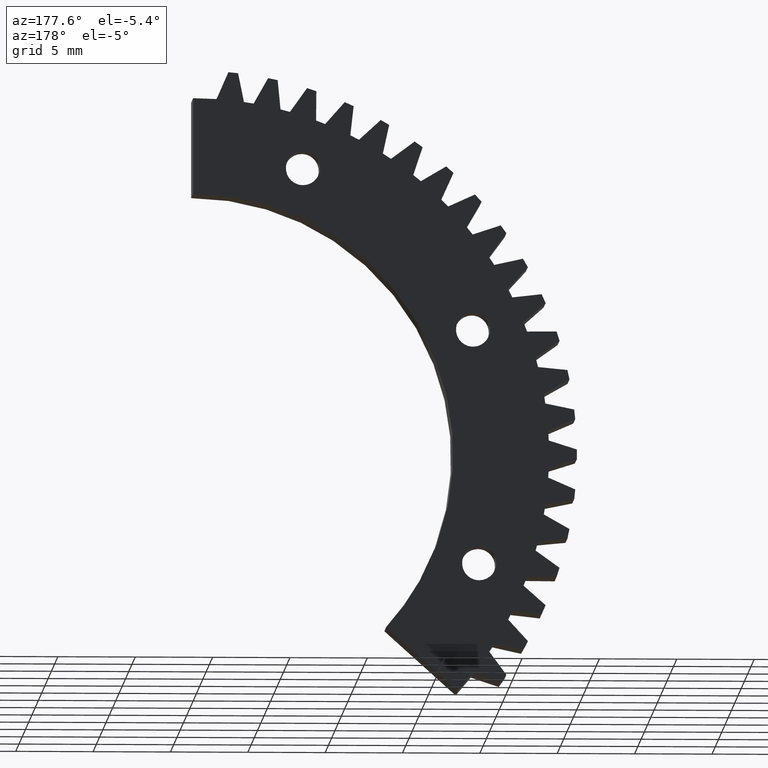
[diagram: clean part render]
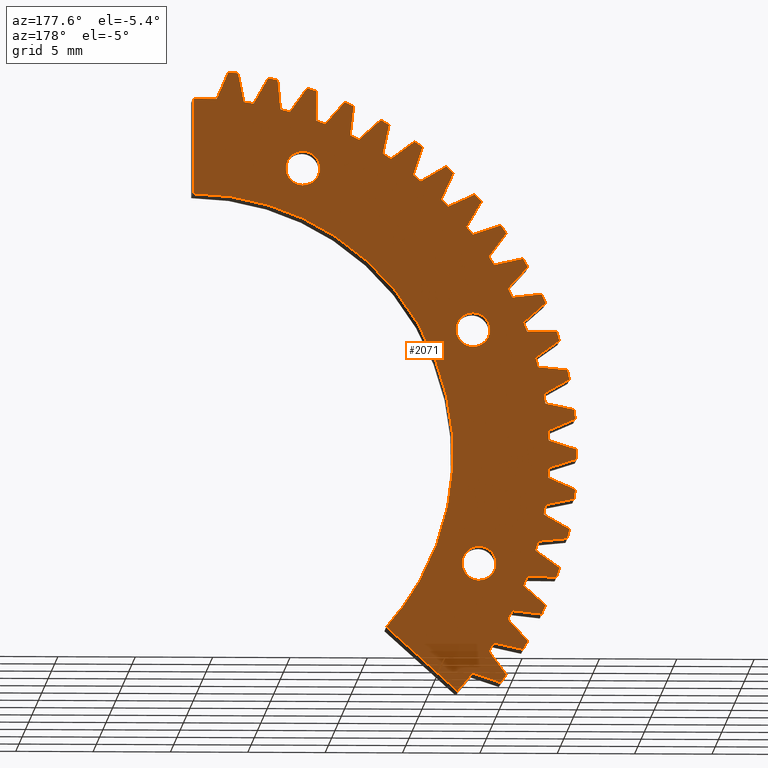
[diagram: same view with one face highlighted and labeled with its STEP entity id]
A machine part, auxiliary view. The second image highlights one B-rep face of the part: STEP entity #2071.
In plain terms, the highlighted face is a freeform B-spline surface patch.
Its self-contained STEP definition (entity closure, byte-faithful):
#283=CARTESIAN_POINT('',(-17.392505277051189,-2.839428E-017,-26.765910265743909));
#284=VERTEX_POINT('',#283);
#290=CARTESIAN_POINT('',(-18.484815756047350,0.0,-27.995747923898900));
#291=VERTEX_POINT('',#290);
#292=CARTESIAN_POINT('',(-17.392505277051189,-2.839428E-017,-26.765910265743909));
#293=CARTESIAN_POINT('',(-17.384815756047349,0.0,-26.830601392248894));
#294=CARTESIAN_POINT('',(-17.384815756047349,0.0,-26.895747923898899));
#295=CARTESIAN_POINT('',(-17.384815756047352,0.0,-27.995747923898911));
#296=CARTESIAN_POINT('',(-18.484815756047350,0.0,-27.995747923898900));
#304=(BOUNDED_CURVE()B_SPLINE_CURVE(2,(#292,#293,#294,#295,#296),.UNSPECIFIED.,.F.,.U.)B_SPLINE_CURVE_WITH_KNOTS((3,2,3),(0.229562473505570,0.250000000000000,0.500000000000000),.UNSPECIFIED.)CURVE()GEOMETRIC_REPRESENTATION_ITEM()RATIONAL_B_SPLINE_CURVE((0.956026754168140,0.976055948321845,1.0,0.707106781186548,1.0))REPRESENTATION_ITEM(''));
#305=EDGE_CURVE('',#284,#291,#304,.T.);
#307=CARTESIAN_POINT('',(-19.582764034302048,-2.775558E-017,-26.962901317540130));
#308=VERTEX_POINT('',#307);
#309=CARTESIAN_POINT('',(-18.484815756047350,0.0,-27.995747923898900));
#310=CARTESIAN_POINT('',(-19.519592429354898,0.0,-27.995747923898904));
#311=CARTESIAN_POINT('',(-19.582764034302055,-2.775558E-017,-26.962901317540126));
#319=(BOUNDED_CURVE()B_SPLINE_CURVE(2,(#309,#310,#311),.UNSPECIFIED.,.F.,.U.)B_SPLINE_CURVE_WITH_KNOTS((3,3),(0.500000000000000,0.739332962193914),.UNSPECIFIED.)CURVE()GEOMETRIC_REPRESENTATION_ITEM()RATIONAL_B_SPLINE_CURVE((1.0,0.719603993339464,0.976072041570213))REPRESENTATION_ITEM(''));
#320=EDGE_CURVE('',#291,#308,#319,.T.);
#354=CARTESIAN_POINT('',(-18.484815756047350,0.0,-25.795747923898901));
#355=VERTEX_POINT('',#354);
#356=CARTESIAN_POINT('',(-19.582764034302055,-2.775558E-017,-26.962901317540133));
#357=CARTESIAN_POINT('',(-19.584815756047355,0.0,-26.929355963680656));
#358=CARTESIAN_POINT('',(-19.584815756047352,0.0,-26.895747923898899));
#359=CARTESIAN_POINT('',(-19.584815756047348,0.0,-25.795747923898901));
#360=CARTESIAN_POINT('',(-18.484815756047350,0.0,-25.795747923898901));
#368=(BOUNDED_CURVE()B_SPLINE_CURVE(2,(#356,#357,#358,#359,#360),.UNSPECIFIED.,.F.,.U.)B_SPLINE_CURVE_WITH_KNOTS((3,2,3),(0.739332962193915,0.750000000000000,1.0),.UNSPECIFIED.)CURVE()GEOMETRIC_REPRESENTATION_ITEM()RATIONAL_B_SPLINE_CURVE((0.976072041570215,0.987502787847084,1.0,0.707106781186548,1.0))REPRESENTATION_ITEM(''));
#369=EDGE_CURVE('',#308,#355,#368,.T.);
#371=CARTESIAN_POINT('',(-18.484815756047350,0.0,-25.795747923898901));
#372=CARTESIAN_POINT('',(-17.507823777559501,0.0,-25.795747923898897));
#373=CARTESIAN_POINT('',(-17.392505277051189,-2.839428E-017,-26.765910265743909));
#381=(BOUNDED_CURVE()B_SPLINE_CURVE(2,(#371,#372,#373),.UNSPECIFIED.,.F.,.U.)B_SPLINE_CURVE_WITH_KNOTS((3,3),(0.0,0.229562473505570),.UNSPECIFIED.)CURVE()GEOMETRIC_REPRESENTATION_ITEM()RATIONAL_B_SPLINE_CURVE((1.0,0.731050832864703,0.956026754168140))REPRESENTATION_ITEM(''));
#382=EDGE_CURVE('',#355,#284,#381,.T.);
#627=CARTESIAN_POINT('',(-16.995861018606430,-2.839428E-017,-11.616828469771271));
#628=VERTEX_POINT('',#627);
#634=CARTESIAN_POINT('',(-18.088171497602598,0.0,-12.846666127926261));
#635=VERTEX_POINT('',#634);
#636=CARTESIAN_POINT('',(-16.995861018606433,-2.839428E-017,-11.616828469771269));
#637=CARTESIAN_POINT('',(-16.988171497602597,0.0,-11.681519596276262));
#638=CARTESIAN_POINT('',(-16.988171497602600,0.0,-11.746666127926259));
#639=CARTESIAN_POINT('',(-16.988171497602590,0.0,-12.846666127926261));
#640=CARTESIAN_POINT('',(-18.088171497602598,0.0,-12.846666127926261));
#648=(BOUNDED_CURVE()B_SPLINE_CURVE(2,(#636,#637,#638,#639,#640),.UNSPECIFIED.,.F.,.U.)B_SPLINE_CURVE_WITH_KNOTS((3,2,3),(0.229562473505569,0.250000000000000,0.500000000000000),.UNSPECIFIED.)CURVE()GEOMETRIC_REPRESENTATION_ITEM()RATIONAL_B_SPLINE_CURVE((0.956026754168138,0.976055948321844,1.0,0.707106781186548,1.0))REPRESENTATION_ITEM(''));
#649=EDGE_CURVE('',#628,#635,#648,.T.);
#651=CARTESIAN_POINT('',(-19.186119775857300,-2.775558E-017,-11.813819521567490));
#652=VERTEX_POINT('',#651);
#653=CARTESIAN_POINT('',(-18.088171497602598,0.0,-12.846666127926261));
#654=CARTESIAN_POINT('',(-19.122948170910139,0.0,-12.846666127926261));
#655=CARTESIAN_POINT('',(-19.186119775857296,-2.775558E-017,-11.813819521567492));
#663=(BOUNDED_CURVE()B_SPLINE_CURVE(2,(#653,#654,#655),.UNSPECIFIED.,.F.,.U.)B_SPLINE_CURVE_WITH_KNOTS((3,3),(0.500000000000000,0.739332962193914),.UNSPECIFIED.)CURVE()GEOMETRIC_REPRESENTATION_ITEM()RATIONAL_B_SPLINE_CURVE((1.0,0.719603993339464,0.976072041570213))REPRESENTATION_ITEM(''));
#664=EDGE_CURVE('',#635,#652,#663,.T.);
#698=CARTESIAN_POINT('',(-18.088171497602598,0.0,-10.646666127926260));
#699=VERTEX_POINT('',#698);
#700=CARTESIAN_POINT('',(-19.186119775857300,-2.775558E-017,-11.813819521567497));
#701=CARTESIAN_POINT('',(-19.188171497602600,0.0,-11.780274167708026));
#702=CARTESIAN_POINT('',(-19.188171497602600,0.0,-11.746666127926259));
#703=CARTESIAN_POINT('',(-19.188171497602600,0.0,-10.646666127926261));
#704=CARTESIAN_POINT('',(-18.088171497602598,0.0,-10.646666127926260));
#712=(BOUNDED_CURVE()B_SPLINE_CURVE(2,(#700,#701,#702,#703,#704),.UNSPECIFIED.,.F.,.U.)B_SPLINE_CURVE_WITH_KNOTS((3,2,3),(0.739332962193915,0.750000000000000,1.0),.UNSPECIFIED.)CURVE()GEOMETRIC_REPRESENTATION_ITEM()RATIONAL_B_SPLINE_CURVE((0.976072041570214,0.987502787847084,1.0,0.707106781186548,1.0))REPRESENTATION_ITEM(''));
#713=EDGE_CURVE('',#652,#699,#712,.T.);
#715=CARTESIAN_POINT('',(-18.088171497602598,0.0,-10.646666127926260));
#716=CARTESIAN_POINT('',(-17.111179519114749,0.0,-10.646666127926260));
#717=CARTESIAN_POINT('',(-16.995861018606437,-2.839428E-017,-11.616828469771264));
#725=(BOUNDED_CURVE()B_SPLINE_CURVE(2,(#715,#716,#717),.UNSPECIFIED.,.F.,.U.)B_SPLINE_CURVE_WITH_KNOTS((3,3),(0.0,0.229562473505569),.UNSPECIFIED.)CURVE()GEOMETRIC_REPRESENTATION_ITEM()RATIONAL_B_SPLINE_CURVE((1.0,0.731050832864704,0.956026754168138))REPRESENTATION_ITEM(''));
#726=EDGE_CURVE('',#699,#628,#725,.T.);
#971=CARTESIAN_POINT('',(-6.003372707059458,-2.839428E-017,-1.185279847954365));
#972=VERTEX_POINT('',#971);
#978=CARTESIAN_POINT('',(-7.095683186055621,0.0,-2.415117506109356));
#979=VERTEX_POINT('',#978);
#980=CARTESIAN_POINT('',(-6.003372707059458,-2.839428E-017,-1.185279847954365));
#981=CARTESIAN_POINT('',(-5.995683186055620,0.0,-1.249970974459353));
#982=CARTESIAN_POINT('',(-5.995683186055620,0.0,-1.315117506109356));
#983=CARTESIAN_POINT('',(-5.995683186055621,0.0,-2.415117506109356));
#984=CARTESIAN_POINT('',(-7.095683186055621,0.0,-2.415117506109356));
#992=(BOUNDED_CURVE()B_SPLINE_CURVE(2,(#980,#981,#982,#983,#984),.UNSPECIFIED.,.F.,.U.)B_SPLINE_CURVE_WITH_KNOTS((3,2,3),(0.229562473505570,0.250000000000000,0.500000000000000),.UNSPECIFIED.)CURVE()GEOMETRIC_REPRESENTATION_ITEM()RATIONAL_B_SPLINE_CURVE((0.956026754168139,0.976055948321844,1.0,0.707106781186548,1.0))REPRESENTATION_ITEM(''));
#993=EDGE_CURVE('',#972,#979,#992,.T.);
#995=CARTESIAN_POINT('',(-8.193631464310325,-2.775558E-017,-1.382270899750586));
#996=VERTEX_POINT('',#995);
#997=CARTESIAN_POINT('',(-7.095683186055621,0.0,-2.415117506109356));
#998=CARTESIAN_POINT('',(-8.130459859363166,0.0,-2.415117506109356));
#999=CARTESIAN_POINT('',(-8.193631464310325,-2.775558E-017,-1.382270899750586));
#1007=(BOUNDED_CURVE()B_SPLINE_CURVE(2,(#997,#998,#999),.UNSPECIFIED.,.F.,.U.)B_SPLINE_CURVE_WITH_KNOTS((3,3),(0.500000000000000,0.739332962193914),.UNSPECIFIED.)CURVE()GEOMETRIC_REPRESENTATION_ITEM()RATIONAL_B_SPLINE_CURVE((1.0,0.719603993339464,0.976072041570213))REPRESENTATION_ITEM(''));
#1008=EDGE_CURVE('',#979,#996,#1007,.T.);
#1042=CARTESIAN_POINT('',(-7.095683186055621,0.0,-0.215117506109356));
#1043=VERTEX_POINT('',#1042);
#1044=CARTESIAN_POINT('',(-8.193631464310325,-2.775558E-017,-1.382270899750586));
#1045=CARTESIAN_POINT('',(-8.195683186055621,0.0,-1.348725545891119));
#1046=CARTESIAN_POINT('',(-8.195683186055621,0.0,-1.315117506109356));
#1047=CARTESIAN_POINT('',(-8.195683186055621,0.0,-0.215117506109356));
#1048=CARTESIAN_POINT('',(-7.095683186055621,0.0,-0.215117506109356));
#1056=(BOUNDED_CURVE()B_SPLINE_CURVE(2,(#1044,#1045,#1046,#1047,#1048),.UNSPECIFIED.,.F.,.U.)B_SPLINE_CURVE_WITH_KNOTS((3,2,3),(0.739332962193915,0.750000000000000,1.0),.UNSPECIFIED.)CURVE()GEOMETRIC_REPRESENTATION_ITEM()RATIONAL_B_SPLINE_CURVE((0.976072041570214,0.987502787847084,1.0,0.707106781186548,1.0))REPRESENTATION_ITEM(''));
#1057=EDGE_CURVE('',#996,#1043,#1056,.T.);
#1059=CARTESIAN_POINT('',(-7.095683186055621,0.0,-0.215117506109356));
#1060=CARTESIAN_POINT('',(-6.118691207567768,0.0,-0.215117506109356));
#1061=CARTESIAN_POINT('',(-6.003372707059458,-2.839428E-017,-1.185279847954365));
#1069=(BOUNDED_CURVE()B_SPLINE_CURVE(2,(#1059,#1060,#1061),.UNSPECIFIED.,.F.,.U.)B_SPLINE_CURVE_WITH_KNOTS((3,3),(0.0,0.229562473505570),.UNSPECIFIED.)CURVE()GEOMETRIC_REPRESENTATION_ITEM()RATIONAL_B_SPLINE_CURVE((1.0,0.731050832864703,0.956026754168139))REPRESENTATION_ITEM(''));
#1070=EDGE_CURVE('',#1043,#972,#1069,.T.);
#1076=CARTESIAN_POINT('',(-26.038757181996029,0.0,6.897333916763474));
#1077=CARTESIAN_POINT('',(1.238760485344445,0.0,6.897333916763474));
#1078=CARTESIAN_POINT('',(-26.038757181996029,0.0,-37.192251966026468));
#1079=CARTESIAN_POINT('',(1.238760485344445,0.0,-37.192251966026468));
#1080=B_SPLINE_SURFACE_WITH_KNOTS('',1,1,((#1076,#1078),(#1077,#1079)),.UNSPECIFIED.,.F.,.F.,.U.,(2,2),(2,2),(0.0,27.277517667340469),(0.0,44.089585882789940),.UNSPECIFIED.);
#1081=CARTESIAN_POINT('',(-17.092330180161351,0.0,-35.190003841206057));
#1082=VERTEX_POINT('',#1081);
#1083=CARTESIAN_POINT('',(-12.484832521074720,0.0,-31.041392299796801));
#1084=VERTEX_POINT('',#1083);
#1085=CARTESIAN_POINT('',(-17.092330180161351,0.0,-35.190003841206057));
#1086=CARTESIAN_POINT('',(-12.484832521074720,0.0,-31.041392299796801));
#1087=QUASI_UNIFORM_CURVE('',1,(#1085,#1086),.UNSPECIFIED.,.F.,.U.);
#1088=EDGE_CURVE('',#1082,#1084,#1087,.T.);
#1089=ORIENTED_EDGE('',*,*,#1088,.F.);
#1090=CARTESIAN_POINT('',(-18.070914999999850,0.0,-34.028202000000000));
#1091=VERTEX_POINT('',#1090);
#1092=CARTESIAN_POINT('',(-18.070914999999850,0.0,-34.028202000000000));
#1093=CARTESIAN_POINT('',(-17.600815569607764,0.0,-34.625269279792668));
#1094=CARTESIAN_POINT('',(-17.092330180161351,0.0,-35.190003841206057));
#1102=(BOUNDED_CURVE()B_SPLINE_CURVE(2,(#1092,#1093,#1094),.UNSPECIFIED.,.F.,.U.)CURVE()GEOMETRIC_REPRESENTATION_ITEM()QUASI_UNIFORM_CURVE()RATIONAL_B_SPLINE_CURVE((1.0,0.999454621518006,1.0))REPRESENTATION_ITEM(''));
#1103=EDGE_CURVE('',#1091,#1082,#1102,.T.);
#1104=ORIENTED_EDGE('',*,*,#1103,.F.);
#1105=CARTESIAN_POINT('',(-19.876850414031551,0.0,-34.630736271565937));
#1106=VERTEX_POINT('',#1105);
#1107=CARTESIAN_POINT('',(-19.876850414031551,0.0,-34.630736271565937));
#1108=CARTESIAN_POINT('',(-18.070914999999850,0.0,-34.028202000000000));
#1109=QUASI_UNIFORM_CURVE('',1,(#1107,#1108),.UNSPECIFIED.,.F.,.U.);
#1110=EDGE_CURVE('',#1106,#1091,#1109,.T.);
#1111=ORIENTED_EDGE('',*,*,#1110,.F.);
#1112=CARTESIAN_POINT('',(-20.247151931836051,0.0,-34.121060030843651));
#1113=VERTEX_POINT('',#1112);
#1114=CARTESIAN_POINT('',(-20.247151931836051,0.0,-34.121060030843637));
#1115=CARTESIAN_POINT('',(-20.065238261149879,0.0,-34.378250033800015));
#1116=CARTESIAN_POINT('',(-19.876850414031551,0.0,-34.630736271565929));
#1124=(BOUNDED_CURVE()B_SPLINE_CURVE(2,(#1114,#1115,#1116),.UNSPECIFIED.,.F.,.U.)CURVE()GEOMETRIC_REPRESENTATION_ITEM()QUASI_UNIFORM_CURVE()RATIONAL_B_SPLINE_CURVE((1.0,0.999919332660222,1.0))REPRESENTATION_ITEM(''));
#1125=EDGE_CURVE('',#1113,#1106,#1124,.T.);
#1126=ORIENTED_EDGE('',*,*,#1125,.F.);
#1127=CARTESIAN_POINT('',(-19.116051409487099,0.0,-32.589704958693801));
#1128=VERTEX_POINT('',#1127);
#1129=CARTESIAN_POINT('',(-19.116051409487099,0.0,-32.589704958693801));
#1130=CARTESIAN_POINT('',(-20.247151931836051,0.0,-34.121060030843651));
#1131=QUASI_UNIFORM_CURVE('',1,(#1129,#1130),.UNSPECIFIED.,.F.,.U.);
#1132=EDGE_CURVE('',#1128,#1113,#1131,.T.);
#1133=ORIENTED_EDGE('',*,*,#1132,.F.);
#1134=CARTESIAN_POINT('',(-19.459166999999901,0.0,-32.061337000000051));
#1135=VERTEX_POINT('',#1134);
#1136=CARTESIAN_POINT('',(-19.459166999999901,0.0,-32.061337000000051));
#1137=CARTESIAN_POINT('',(-19.291227688761953,0.0,-32.327870850725972));
#1138=CARTESIAN_POINT('',(-19.116051409487099,0.0,-32.589704958693801));
#1146=(BOUNDED_CURVE()B_SPLINE_CURVE(2,(#1136,#1137,#1138),.UNSPECIFIED.,.F.,.U.)CURVE()GEOMETRIC_REPRESENTATION_ITEM()QUASI_UNIFORM_CURVE()RATIONAL_B_SPLINE_CURVE((1.0,0.999906209882898,1.0))REPRESENTATION_ITEM(''));
#1147=EDGE_CURVE('',#1135,#1128,#1146,.T.);
#1148=ORIENTED_EDGE('',*,*,#1147,.F.);
#1149=CARTESIAN_POINT('',(-21.318195575685252,0.0,-32.471797917155953));
#1150=VERTEX_POINT('',#1149);
#1151=CARTESIAN_POINT('',(-21.318195575685252,0.0,-32.471797917155953));
#1152=CARTESIAN_POINT('',(-19.459166999999901,0.0,-32.061337000000051));
#1153=QUASI_UNIFORM_CURVE('',1,(#1151,#1152),.UNSPECIFIED.,.F.,.U.);
#1154=EDGE_CURVE('',#1150,#1135,#1153,.T.);
#1155=ORIENTED_EDGE('',*,*,#1154,.F.);
#1156=CARTESIAN_POINT('',(-21.633200999999900,0.0,-31.926196999999998));
#1157=VERTEX_POINT('',#1156);
#1158=CARTESIAN_POINT('',(-21.633200999999900,0.0,-31.926196999999998));
#1159=CARTESIAN_POINT('',(-21.479163618592178,0.0,-32.200998167942807));
#1160=CARTESIAN_POINT('',(-21.318195575685252,0.0,-32.471797917155953));
#1168=(BOUNDED_CURVE()B_SPLINE_CURVE(2,(#1158,#1159,#1160),.UNSPECIFIED.,.F.,.U.)CURVE()GEOMETRIC_REPRESENTATION_ITEM()QUASI_UNIFORM_CURVE()RATIONAL_B_SPLINE_CURVE((1.0,0.999919329477810,1.0))REPRESENTATION_ITEM(''));
#1169=EDGE_CURVE('',#1157,#1150,#1168,.T.);
#1170=ORIENTED_EDGE('',*,*,#1169,.F.);
#1171=CARTESIAN_POINT('',(-20.348221299102551,0.0,-30.521467647659701));
#1172=VERTEX_POINT('',#1171);
#1173=CARTESIAN_POINT('',(-20.348221299102551,0.0,-30.521467647659701));
#1174=CARTESIAN_POINT('',(-21.633200999999900,0.0,-31.926196999999998));
#1175=QUASI_UNIFORM_CURVE('',1,(#1173,#1174),.UNSPECIFIED.,.F.,.U.);
#1176=EDGE_CURVE('',#1172,#1157,#1175,.T.);
#1177=ORIENTED_EDGE('',*,*,#1176,.F.);
#1178=CARTESIAN_POINT('',(-20.634230999999900,0.0,-29.960132999999999));
#1179=VERTEX_POINT('',#1178);
#1180=CARTESIAN_POINT('',(-20.634230999999900,0.0,-29.960132999999999));
#1181=CARTESIAN_POINT('',(-20.495070411087564,0.0,-30.242759072931797));
#1182=CARTESIAN_POINT('',(-20.348221299102551,0.0,-30.521467647659701));
#1190=(BOUNDED_CURVE()B_SPLINE_CURVE(2,(#1180,#1181,#1182),.UNSPECIFIED.,.F.,.U.)CURVE()GEOMETRIC_REPRESENTATION_ITEM()QUASI_UNIFORM_CURVE()RATIONAL_B_SPLINE_CURVE((1.0,0.999906210581396,1.0))REPRESENTATION_ITEM(''));
#1191=EDGE_CURVE('',#1179,#1172,#1190,.T.);
#1192=ORIENTED_EDGE('',*,*,#1191,.F.);
#1193=CARTESIAN_POINT('',(-22.525977204834948,0.0,-30.174019501582698));
#1194=VERTEX_POINT('',#1193);
#1195=CARTESIAN_POINT('',(-22.525977204834948,0.0,-30.174019501582698));
#1196=CARTESIAN_POINT('',(-20.634230999999900,0.0,-29.960132999999999));
#1197=QUASI_UNIFORM_CURVE('',1,(#1195,#1196),.UNSPECIFIED.,.F.,.U.);
#1198=EDGE_CURVE('',#1194,#1179,#1197,.T.);
#1199=ORIENTED_EDGE('',*,*,#1198,.F.);
#1200=CARTESIAN_POINT('',(-22.782218999999898,0.0,-29.598483999999999));
#1201=VERTEX_POINT('',#1200);
#1202=CARTESIAN_POINT('',(-22.782218999999898,0.0,-29.598483999999999));
#1203=CARTESIAN_POINT('',(-22.657753509639182,0.0,-29.887879242687351));
#1204=CARTESIAN_POINT('',(-22.525977204834948,0.0,-30.174019501582698));
#1212=(BOUNDED_CURVE()B_SPLINE_CURVE(2,(#1202,#1203,#1204),.UNSPECIFIED.,.F.,.U.)CURVE()GEOMETRIC_REPRESENTATION_ITEM()QUASI_UNIFORM_CURVE()RATIONAL_B_SPLINE_CURVE((1.0,0.999919331048054,1.0))REPRESENTATION_ITEM(''));
#1213=EDGE_CURVE('',#1201,#1194,#1212,.T.);
#1214=ORIENTED_EDGE('',*,*,#1213,.F.);
#1215=CARTESIAN_POINT('',(-21.357449212627898,0.0,-28.335768627281450));
#1216=VERTEX_POINT('',#1215);
#1217=CARTESIAN_POINT('',(-21.357449212627898,0.0,-28.335768627281450));
#1218=CARTESIAN_POINT('',(-22.782218999999898,0.0,-29.598483999999999));
#1219=QUASI_UNIFORM_CURVE('',1,(#1217,#1218),.UNSPECIFIED.,.F.,.U.);
#1220=EDGE_CURVE('',#1216,#1201,#1219,.T.);
#1221=ORIENTED_EDGE('',*,*,#1220,.F.);
#1222=CARTESIAN_POINT('',(-21.583221726717451,0.0,-27.747611213448302));
#1223=VERTEX_POINT('',#1222);
#1224=CARTESIAN_POINT('',(-21.583221726717429,0.0,-27.747611213448302));
#1225=CARTESIAN_POINT('',(-21.474363459173961,0.0,-28.043236120914390));
#1226=CARTESIAN_POINT('',(-21.357449212627891,0.0,-28.335768627281439));
#1234=(BOUNDED_CURVE()B_SPLINE_CURVE(2,(#1224,#1225,#1226),.UNSPECIFIED.,.F.,.U.)CURVE()GEOMETRIC_REPRESENTATION_ITEM()QUASI_UNIFORM_CURVE()RATIONAL_B_SPLINE_CURVE((1.0,0.999906209597057,1.0))REPRESENTATION_ITEM(''));
#1235=EDGE_CURVE('',#1223,#1216,#1234,.T.);
#1236=ORIENTED_EDGE('',*,*,#1235,.F.);
#1237=CARTESIAN_POINT('',(-23.486960256427949,0.0,-27.762576994153349));
#1238=VERTEX_POINT('',#1237);
#1239=CARTESIAN_POINT('',(-23.486960256427949,0.0,-27.762576994153349));
#1240=CARTESIAN_POINT('',(-21.583221726717451,0.0,-27.747611213448302));
#1241=QUASI_UNIFORM_CURVE('',1,(#1239,#1240),.UNSPECIFIED.,.F.,.U.);
#1242=EDGE_CURVE('',#1238,#1223,#1241,.T.);
#1243=ORIENTED_EDGE('',*,*,#1242,.F.);
#1244=CARTESIAN_POINT('',(-23.681632999999898,0.0,-27.163418000000000));
#1245=VERTEX_POINT('',#1244);
#1246=CARTESIAN_POINT('',(-23.681632999999898,0.0,-27.163418000000000));
#1247=CARTESIAN_POINT('',(-23.588102015474011,0.0,-27.464233941698055));
#1248=CARTESIAN_POINT('',(-23.486960256427949,0.0,-27.762576994153349));
#1256=(BOUNDED_CURVE()B_SPLINE_CURVE(2,(#1246,#1247,#1248),.UNSPECIFIED.,.F.,.U.)CURVE()GEOMETRIC_REPRESENTATION_ITEM()QUASI_UNIFORM_CURVE()RATIONAL_B_SPLINE_CURVE((1.0,0.999919333477341,1.0))REPRESENTATION_ITEM(''));
#1257=EDGE_CURVE('',#1245,#1238,#1256,.T.);
#1258=ORIENTED_EDGE('',*,*,#1257,.F.);
#1259=CARTESIAN_POINT('',(-22.132682517502150,0.0,-26.056544738620801));
#1260=VERTEX_POINT('',#1259);
#1261=CARTESIAN_POINT('',(-22.132682517502150,0.0,-26.056544738620801));
#1262=CARTESIAN_POINT('',(-23.681632999999898,0.0,-27.163418000000000));
#1263=QUASI_UNIFORM_CURVE('',1,(#1261,#1262),.UNSPECIFIED.,.F.,.U.);
#1264=EDGE_CURVE('',#1260,#1245,#1263,.T.);
#1265=ORIENTED_EDGE('',*,*,#1264,.F.);
#1266=CARTESIAN_POINT('',(-22.295737999999901,0.0,-25.448010000000000));
#1267=VERTEX_POINT('',#1266);
#1268=CARTESIAN_POINT('',(-22.295737999999901,0.0,-25.448010000000000));
#1269=CARTESIAN_POINT('',(-22.218378205445159,0.0,-25.753394161033988));
#1270=CARTESIAN_POINT('',(-22.132682517502172,0.0,-26.056544738620801));
#1278=(BOUNDED_CURVE()B_SPLINE_CURVE(2,(#1268,#1269,#1270),.UNSPECIFIED.,.F.,.U.)CURVE()GEOMETRIC_REPRESENTATION_ITEM()QUASI_UNIFORM_CURVE()RATIONAL_B_SPLINE_CURVE((1.0,0.999906209771586,1.0))REPRESENTATION_ITEM(''));
#1279=EDGE_CURVE('',#1267,#1260,#1278,.T.);
#1280=ORIENTED_EDGE('',*,*,#1279,.F.);
#1281=CARTESIAN_POINT('',(-24.190610700155851,0.0,-25.263908255606950));
#1282=VERTEX_POINT('',#1281);
#1283=CARTESIAN_POINT('',(-24.190610700155851,0.0,-25.263908255606950));
#1284=CARTESIAN_POINT('',(-22.295737999999901,0.0,-25.448010000000000));
#1285=QUASI_UNIFORM_CURVE('',1,(#1283,#1284),.UNSPECIFIED.,.F.,.U.);
#1286=EDGE_CURVE('',#1282,#1267,#1285,.T.);
#1287=ORIENTED_EDGE('',*,*,#1286,.F.);
#1288=CARTESIAN_POINT('',(-24.321593999999902,0.0,-24.647677999999999));
#1289=VERTEX_POINT('',#1288);
#1290=CARTESIAN_POINT('',(-24.321593999999902,0.0,-24.647677999999999));
#1291=CARTESIAN_POINT('',(-24.260016443885679,0.0,-24.956625091048398));
#1292=CARTESIAN_POINT('',(-24.190610700155830,0.0,-25.263908255606950));
#1300=(BOUNDED_CURVE()B_SPLINE_CURVE(2,(#1290,#1291,#1292),.UNSPECIFIED.,.F.,.U.)CURVE()GEOMETRIC_REPRESENTATION_ITEM()QUASI_UNIFORM_CURVE()RATIONAL_B_SPLINE_CURVE((1.0,0.999919331994345,1.0))REPRESENTATION_ITEM(''));
#1301=EDGE_CURVE('',#1289,#1282,#1300,.T.);
#1302=ORIENTED_EDGE('',*,*,#1301,.F.);
#1303=CARTESIAN_POINT('',(-22.665424000765050,0.0,-23.708778203990001));
#1304=VERTEX_POINT('',#1303);
#1305=CARTESIAN_POINT('',(-22.665424000765050,0.0,-23.708778203990001));
#1306=CARTESIAN_POINT('',(-24.321593999999902,0.0,-24.647677999999999));
#1307=QUASI_UNIFORM_CURVE('',1,(#1305,#1306),.UNSPECIFIED.,.F.,.U.);
#1308=EDGE_CURVE('',#1304,#1289,#1307,.T.);
#1309=ORIENTED_EDGE('',*,*,#1308,.F.);
#1310=CARTESIAN_POINT('',(-22.763976999999901,0.0,-23.086528999999999));
#1311=VERTEX_POINT('',#1310);
#1312=CARTESIAN_POINT('',(-22.763976999999901,0.0,-23.086528999999999));
#1313=CARTESIAN_POINT('',(-22.718961989341121,0.0,-23.398328555438344));
#1314=CARTESIAN_POINT('',(-22.665424000765050,0.0,-23.708778203990001));
#1322=(BOUNDED_CURVE()B_SPLINE_CURVE(2,(#1312,#1313,#1314),.UNSPECIFIED.,.F.,.U.)CURVE()GEOMETRIC_REPRESENTATION_ITEM()QUASI_UNIFORM_CURVE()RATIONAL_B_SPLINE_CURVE((1.0,0.999906208552333,1.0))REPRESENTATION_ITEM(''));
#1323=EDGE_CURVE('',#1311,#1304,#1322,.T.);
#1324=ORIENTED_EDGE('',*,*,#1323,.F.);
#1325=CARTESIAN_POINT('',(-24.629226823151150,0.0,-22.705362401327299));
#1326=VERTEX_POINT('',#1325);
#1327=CARTESIAN_POINT('',(-24.629226823151150,0.0,-22.705362401327299));
#1328=CARTESIAN_POINT('',(-22.763976999999901,0.0,-23.086528999999999));
#1329=QUASI_UNIFORM_CURVE('',1,(#1327,#1328),.UNSPECIFIED.,.F.,.U.);
#1330=EDGE_CURVE('',#1326,#1311,#1329,.T.);
#1331=ORIENTED_EDGE('',*,*,#1330,.F.);
#1332=CARTESIAN_POINT('',(-24.695075999999901,0.0,-22.078816000000000));
#1333=VERTEX_POINT('',#1332);
#1334=CARTESIAN_POINT('',(-24.695075999999901,0.0,-22.078816000000000));
#1335=CARTESIAN_POINT('',(-24.666130788490683,0.0,-22.392507449001140));
#1336=CARTESIAN_POINT('',(-24.629226823151150,0.0,-22.705362401327299));
#1344=(BOUNDED_CURVE()B_SPLINE_CURVE(2,(#1334,#1335,#1336),.UNSPECIFIED.,.F.,.U.)CURVE()GEOMETRIC_REPRESENTATION_ITEM()QUASI_UNIFORM_CURVE()RATIONAL_B_SPLINE_CURVE((1.0,0.999919331953741,1.0))REPRESENTATION_ITEM(''));
#1345=EDGE_CURVE('',#1333,#1326,#1344,.T.);
#1346=ORIENTED_EDGE('',*,*,#1345,.F.);
#1347=CARTESIAN_POINT('',(-22.949839305493100,0.0,-21.318180758566701));
#1348=VERTEX_POINT('',#1347);
#1349=CARTESIAN_POINT('',(-22.949839305493100,0.0,-21.318180758566701));
#1350=CARTESIAN_POINT('',(-24.695075999999901,0.0,-22.078816000000000));
#1351=QUASI_UNIFORM_CURVE('',1,(#1349,#1350),.UNSPECIFIED.,.F.,.U.);
#1352=EDGE_CURVE('',#1348,#1333,#1351,.T.);
#1353=ORIENTED_EDGE('',*,*,#1352,.F.);
#1354=CARTESIAN_POINT('',(-22.982810999999899,0.0,-20.689045000000000));
#1355=VERTEX_POINT('',#1354);
#1356=CARTESIAN_POINT('',(-22.982810999999899,0.0,-20.689045000000000));
#1357=CARTESIAN_POINT('',(-22.970633717165615,0.0,-21.003838682169128));
#1358=CARTESIAN_POINT('',(-22.949839305493089,0.0,-21.318180758566712));
#1366=(BOUNDED_CURVE()B_SPLINE_CURVE(2,(#1356,#1357,#1358),.UNSPECIFIED.,.F.,.U.)CURVE()GEOMETRIC_REPRESENTATION_ITEM()QUASI_UNIFORM_CURVE()RATIONAL_B_SPLINE_CURVE((1.0,0.999906210409471,1.0))REPRESENTATION_ITEM(''));
#1367=EDGE_CURVE('',#1355,#1348,#1366,.T.);
#1368=ORIENTED_EDGE('',*,*,#1367,.F.);
#1369=CARTESIAN_POINT('',(-24.797998450442002,0.0,-20.114996225188701));
#1370=VERTEX_POINT('',#1369);
#1371=CARTESIAN_POINT('',(-24.797998450442002,0.0,-20.114996225188701));
#1372=CARTESIAN_POINT('',(-22.982810999999899,0.0,-20.689045000000000));
#1373=QUASI_UNIFORM_CURVE('',1,(#1371,#1372),.UNSPECIFIED.,.F.,.U.);
#1374=EDGE_CURVE('',#1370,#1355,#1373,.T.);
#1375=ORIENTED_EDGE('',*,*,#1374,.F.);
#1376=CARTESIAN_POINT('',(-24.797995999999898,0.0,-19.484997000000000));
#1377=VERTEX_POINT('',#1376);
#1378=CARTESIAN_POINT('',(-24.797995999999898,0.0,-19.484997000000000));
#1379=CARTESIAN_POINT('',(-24.801998546771795,0.0,-19.799996612206701));
#1380=CARTESIAN_POINT('',(-24.797998450442002,0.0,-20.114996225188701));
#1388=(BOUNDED_CURVE()B_SPLINE_CURVE(2,(#1378,#1379,#1380),.UNSPECIFIED.,.F.,.U.)CURVE()GEOMETRIC_REPRESENTATION_ITEM()QUASI_UNIFORM_CURVE()RATIONAL_B_SPLINE_CURVE((1.0,0.999919331445257,1.0))REPRESENTATION_ITEM(''));
#1389=EDGE_CURVE('',#1377,#1370,#1388,.T.);
#1390=ORIENTED_EDGE('',*,*,#1389,.F.);
#1391=CARTESIAN_POINT('',(-22.982810937230550,0.0,-18.910953768577599));
#1392=VERTEX_POINT('',#1391);
#1393=CARTESIAN_POINT('',(-22.982810937230550,0.0,-18.910953768577599));
#1394=CARTESIAN_POINT('',(-24.797995999999898,0.0,-19.484997000000000));
#1395=QUASI_UNIFORM_CURVE('',1,(#1393,#1394),.UNSPECIFIED.,.F.,.U.);
#1396=EDGE_CURVE('',#1392,#1377,#1395,.T.);
#1397=ORIENTED_EDGE('',*,*,#1396,.F.);
#1398=CARTESIAN_POINT('',(-22.949835999999902,0.0,-18.281819000000102));
#1399=VERTEX_POINT('',#1398);
#1400=CARTESIAN_POINT('',(-22.949835999999902,0.0,-18.281819000000102));
#1401=CARTESIAN_POINT('',(-22.970632068681301,0.0,-18.596160580385053));
#1402=CARTESIAN_POINT('',(-22.982810937230550,0.0,-18.910953768577599));
#1410=(BOUNDED_CURVE()B_SPLINE_CURVE(2,(#1400,#1401,#1402),.UNSPECIFIED.,.F.,.U.)CURVE()GEOMETRIC_REPRESENTATION_ITEM()QUASI_UNIFORM_CURVE()RATIONAL_B_SPLINE_CURVE((1.0,0.999906210639012,1.0))REPRESENTATION_ITEM(''));
#1411=EDGE_CURVE('',#1399,#1392,#1410,.T.);
#1412=ORIENTED_EDGE('',*,*,#1411,.F.);
#1413=CARTESIAN_POINT('',(-24.695078834793499,0.0,-17.521176553354650));
#1414=VERTEX_POINT('',#1413);
#1415=CARTESIAN_POINT('',(-24.695078834793499,0.0,-17.521176553354650));
#1416=CARTESIAN_POINT('',(-22.949835999999902,0.0,-18.281819000000102));
#1417=QUASI_UNIFORM_CURVE('',1,(#1415,#1416),.UNSPECIFIED.,.F.,.U.);
#1418=EDGE_CURVE('',#1414,#1399,#1417,.T.);
#1419=ORIENTED_EDGE('',*,*,#1418,.F.);
#1420=CARTESIAN_POINT('',(-24.629225999999900,0.0,-16.894627000000000));
#1421=VERTEX_POINT('',#1420);
#1422=CARTESIAN_POINT('',(-24.629225999999900,0.0,-16.894627000000000));
#1423=CARTESIAN_POINT('',(-24.666131743786913,0.0,-17.207483533743467));
#1424=CARTESIAN_POINT('',(-24.695078834793510,0.0,-17.521176553354650));
#1432=(BOUNDED_CURVE()B_SPLINE_CURVE(2,(#1422,#1423,#1424),.UNSPECIFIED.,.F.,.U.)CURVE()GEOMETRIC_REPRESENTATION_ITEM()QUASI_UNIFORM_CURVE()RATIONAL_B_SPLINE_CURVE((1.0,0.999919331064430,1.0))REPRESENTATION_ITEM(''));
#1433=EDGE_CURVE('',#1421,#1414,#1432,.T.);
#1434=ORIENTED_EDGE('',*,*,#1433,.F.);
#1435=CARTESIAN_POINT('',(-22.763977760843300,0.0,-16.513463361393399));
#1436=VERTEX_POINT('',#1435);
#1437=CARTESIAN_POINT('',(-22.763977760843300,0.0,-16.513463361393399));
#1438=CARTESIAN_POINT('',(-24.629225999999900,0.0,-16.894627000000000));
#1439=QUASI_UNIFORM_CURVE('',1,(#1437,#1438),.UNSPECIFIED.,.F.,.U.);
#1440=EDGE_CURVE('',#1436,#1421,#1439,.T.);
#1441=ORIENTED_EDGE('',*,*,#1440,.F.);
#1442=CARTESIAN_POINT('',(-22.665420000000001,0.0,-15.891216000000000));
#1443=VERTEX_POINT('',#1442);
#1444=CARTESIAN_POINT('',(-22.665420000000001,0.0,-15.891216000000000));
#1445=CARTESIAN_POINT('',(-22.718960355012502,0.0,-16.201664728589616));
#1446=CARTESIAN_POINT('',(-22.763977760843300,0.0,-16.513463361393399));
#1454=(BOUNDED_CURVE()B_SPLINE_CURVE(2,(#1444,#1445,#1446),.UNSPECIFIED.,.F.,.U.)CURVE()GEOMETRIC_REPRESENTATION_ITEM()QUASI_UNIFORM_CURVE()RATIONAL_B_SPLINE_CURVE((1.0,0.999906208865346,1.0))REPRESENTATION_ITEM(''));
#1455=EDGE_CURVE('',#1443,#1436,#1454,.T.);
#1456=ORIENTED_EDGE('',*,*,#1455,.F.);
#1457=CARTESIAN_POINT('',(-24.321593189956449,0.0,-14.952313459222401));
#1458=VERTEX_POINT('',#1457);
#1459=CARTESIAN_POINT('',(-24.321593189956449,0.0,-14.952313459222401));
#1460=CARTESIAN_POINT('',(-22.665420000000001,0.0,-15.891216000000000));
#1461=QUASI_UNIFORM_CURVE('',1,(#1459,#1460),.UNSPECIFIED.,.F.,.U.);
#1462=EDGE_CURVE('',#1458,#1443,#1461,.T.);
#1463=ORIENTED_EDGE('',*,*,#1462,.F.);
#1464=CARTESIAN_POINT('',(-24.190604999999898,0.0,-14.336086000000099));
#1465=VERTEX_POINT('',#1464);
#1466=CARTESIAN_POINT('',(-24.190604999999898,0.0,-14.336086000000099));
#1467=CARTESIAN_POINT('',(-24.260012930521214,0.0,-14.643367817172338));
#1468=CARTESIAN_POINT('',(-24.321593189956449,0.0,-14.952313459222401));
#1476=(BOUNDED_CURVE()B_SPLINE_CURVE(2,(#1466,#1467,#1468),.UNSPECIFIED.,.F.,.U.)CURVE()GEOMETRIC_REPRESENTATION_ITEM()QUASI_UNIFORM_CURVE()RATIONAL_B_SPLINE_CURVE((1.0,0.999919332420641,1.0))REPRESENTATION_ITEM(''));
#1477=EDGE_CURVE('',#1465,#1458,#1476,.T.);
#1478=ORIENTED_EDGE('',*,*,#1477,.F.);
#1479=CARTESIAN_POINT('',(-22.295738380515850,0.0,-14.151986069101859));
#1480=VERTEX_POINT('',#1479);
#1481=CARTESIAN_POINT('',(-22.295738380515850,0.0,-14.151986069101859));
#1482=CARTESIAN_POINT('',(-24.190604999999898,0.0,-14.336086000000099));
#1483=QUASI_UNIFORM_CURVE('',1,(#1481,#1482),.UNSPECIFIED.,.F.,.U.);
#1484=EDGE_CURVE('',#1480,#1465,#1483,.T.);
#1485=ORIENTED_EDGE('',*,*,#1484,.F.);
#1486=CARTESIAN_POINT('',(-22.132679546432051,0.0,-13.543442751156119));
#1487=VERTEX_POINT('',#1486);
#1488=CARTESIAN_POINT('',(-22.132679546432069,0.0,-13.543442751156130));
#1489=CARTESIAN_POINT('',(-22.218376622228188,0.0,-13.846597688348961));
#1490=CARTESIAN_POINT('',(-22.295738380515850,0.0,-14.151986069101870));
#1498=(BOUNDED_CURVE()B_SPLINE_CURVE(2,(#1488,#1489,#1490),.UNSPECIFIED.,.F.,.U.)CURVE()GEOMETRIC_REPRESENTATION_ITEM()QUASI_UNIFORM_CURVE()RATIONAL_B_SPLINE_CURVE((1.0,0.999906207049175,1.0))REPRESENTATION_ITEM(''));
#1499=EDGE_CURVE('',#1487,#1480,#1498,.T.);
#1500=ORIENTED_EDGE('',*,*,#1499,.F.);
#1501=CARTESIAN_POINT('',(-23.681638284229951,0.0,-12.436578695895699));
#1502=VERTEX_POINT('',#1501);
#1503=CARTESIAN_POINT('',(-23.681638284229951,0.0,-12.436578695895699));
#1504=CARTESIAN_POINT('',(-22.132679546432051,0.0,-13.543442751156119));
#1505=QUASI_UNIFORM_CURVE('',1,(#1503,#1504),.UNSPECIFIED.,.F.,.U.);
#1506=EDGE_CURVE('',#1502,#1487,#1505,.T.);
#1507=ORIENTED_EDGE('',*,*,#1506,.F.);
#1508=CARTESIAN_POINT('',(-23.486952999999900,0.0,-11.837414000000100));
#1509=VERTEX_POINT('',#1508);
#1510=CARTESIAN_POINT('',(-23.486952999999900,0.0,-11.837414000000100));
#1511=CARTESIAN_POINT('',(-23.588101141371524,0.0,-12.135759866203676));
#1512=CARTESIAN_POINT('',(-23.681638284229951,0.0,-12.436578695895699));
#1520=(BOUNDED_CURVE()B_SPLINE_CURVE(2,(#1510,#1511,#1512),.UNSPECIFIED.,.F.,.U.)CURVE()GEOMETRIC_REPRESENTATION_ITEM()QUASI_UNIFORM_CURVE()RATIONAL_B_SPLINE_CURVE((1.0,0.999919331098771,1.0))REPRESENTATION_ITEM(''));
#1521=EDGE_CURVE('',#1509,#1502,#1520,.T.);
#1522=ORIENTED_EDGE('',*,*,#1521,.F.);
#1523=CARTESIAN_POINT('',(-21.583220909659051,0.0,-11.852384567677721));
#1524=VERTEX_POINT('',#1523);
#1525=CARTESIAN_POINT('',(-21.583220909659051,0.0,-11.852384567677721));
#1526=CARTESIAN_POINT('',(-23.486952999999900,0.0,-11.837414000000100));
#1527=QUASI_UNIFORM_CURVE('',1,(#1525,#1526),.UNSPECIFIED.,.F.,.U.);
#1528=EDGE_CURVE('',#1524,#1509,#1527,.T.);
#1529=ORIENTED_EDGE('',*,*,#1528,.F.);
#1530=CARTESIAN_POINT('',(-21.357443999999902,0.0,-11.264225000000000));
#1531=VERTEX_POINT('',#1530);
#1532=CARTESIAN_POINT('',(-21.357443999999902,0.0,-11.264225000000000));
#1533=CARTESIAN_POINT('',(-21.474360490473071,0.0,-11.556758564737240));
#1534=CARTESIAN_POINT('',(-21.583220909659051,0.0,-11.852384567677721));
#1542=(BOUNDED_CURVE()B_SPLINE_CURVE(2,(#1532,#1533,#1534),.UNSPECIFIED.,.F.,.U.)CURVE()GEOMETRIC_REPRESENTATION_ITEM()QUASI_UNIFORM_CURVE()RATIONAL_B_SPLINE_CURVE((1.0,0.999906208516158,1.0))REPRESENTATION_ITEM(''));
#1543=EDGE_CURVE('',#1531,#1524,#1542,.T.);
#1544=ORIENTED_EDGE('',*,*,#1543,.F.);
#1545=CARTESIAN_POINT('',(-22.782214338514201,0.0,-10.001496041180321));
#1546=VERTEX_POINT('',#1545);
#1547=CARTESIAN_POINT('',(-22.782214338514201,0.0,-10.001496041180321));
#1548=CARTESIAN_POINT('',(-21.357443999999902,0.0,-11.264225000000000));
#1549=QUASI_UNIFORM_CURVE('',1,(#1547,#1548),.UNSPECIFIED.,.F.,.U.);
#1550=EDGE_CURVE('',#1546,#1531,#1549,.T.);
#1551=ORIENTED_EDGE('',*,*,#1550,.F.);
#1552=CARTESIAN_POINT('',(-22.525977999999899,0.0,-9.425976000000201));
#1553=VERTEX_POINT('',#1552);
#1554=CARTESIAN_POINT('',(-22.525977999999899,0.0,-9.425976000000201));
#1555=CARTESIAN_POINT('',(-22.657751385471627,0.0,-9.712108611945755));
#1556=CARTESIAN_POINT('',(-22.782214338514201,0.0,-10.001496041180321));
#1564=(BOUNDED_CURVE()B_SPLINE_CURVE(2,(#1554,#1555,#1556),.UNSPECIFIED.,.F.,.U.)CURVE()GEOMETRIC_REPRESENTATION_ITEM()QUASI_UNIFORM_CURVE()RATIONAL_B_SPLINE_CURVE((1.0,0.999919335248425,1.0))REPRESENTATION_ITEM(''));
#1565=EDGE_CURVE('',#1553,#1546,#1564,.T.);
#1566=ORIENTED_EDGE('',*,*,#1565,.F.);
#1567=CARTESIAN_POINT('',(-20.634235085266599,0.0,-9.639864038005010));
#1568=VERTEX_POINT('',#1567);
#1569=CARTESIAN_POINT('',(-20.634235085266599,0.0,-9.639864038005010));
#1570=CARTESIAN_POINT('',(-22.525977999999899,0.0,-9.425976000000201));
#1571=QUASI_UNIFORM_CURVE('',1,(#1569,#1570),.UNSPECIFIED.,.F.,.U.);
#1572=EDGE_CURVE('',#1568,#1553,#1571,.T.);
#1573=ORIENTED_EDGE('',*,*,#1572,.F.);
#1574=CARTESIAN_POINT('',(-20.348220000000001,0.0,-9.078533000000000));
#1575=VERTEX_POINT('',#1574);
#1576=CARTESIAN_POINT('',(-20.348220000000001,0.0,-9.078533000000000));
#1577=CARTESIAN_POINT('',(-20.495071794578831,0.0,-9.357239775069310));
#1578=CARTESIAN_POINT('',(-20.634235085266599,0.0,-9.639864038005010));
#1586=(BOUNDED_CURVE()B_SPLINE_CURVE(2,(#1576,#1577,#1578),.UNSPECIFIED.,.F.,.U.)CURVE()GEOMETRIC_REPRESENTATION_ITEM()QUASI_UNIFORM_CURVE()RATIONAL_B_SPLINE_CURVE((1.0,0.999906210818157,1.0))REPRESENTATION_ITEM(''));
#1587=EDGE_CURVE('',#1575,#1568,#1586,.T.);
#1588=ORIENTED_EDGE('',*,*,#1587,.F.);
#1589=CARTESIAN_POINT('',(-21.633196503537249,0.0,-7.673797639337000));
#1590=VERTEX_POINT('',#1589);
#1591=CARTESIAN_POINT('',(-21.633196503537249,0.0,-7.673797639337000));
#1592=CARTESIAN_POINT('',(-20.348220000000001,0.0,-9.078533000000000));
#1593=QUASI_UNIFORM_CURVE('',1,(#1591,#1592),.UNSPECIFIED.,.F.,.U.);
#1594=EDGE_CURVE('',#1590,#1575,#1593,.T.);
#1595=ORIENTED_EDGE('',*,*,#1594,.F.);
#1596=CARTESIAN_POINT('',(-21.318198999999900,0.0,-7.128201000000099));
#1597=VERTEX_POINT('',#1596);
#1598=CARTESIAN_POINT('',(-21.318198999999900,0.0,-7.128201000000099));
#1599=CARTESIAN_POINT('',(-21.479162998056886,0.0,-7.398998658826026));
#1600=CARTESIAN_POINT('',(-21.633196503537249,0.0,-7.673797639337000));
#1608=(BOUNDED_CURVE()B_SPLINE_CURVE(2,(#1598,#1599,#1600),.UNSPECIFIED.,.F.,.U.)CURVE()GEOMETRIC_REPRESENTATION_ITEM()QUASI_UNIFORM_CURVE()RATIONAL_B_SPLINE_CURVE((1.0,0.999919331441498,1.0))REPRESENTATION_ITEM(''));
#1609=EDGE_CURVE('',#1597,#1590,#1608,.T.);
#1610=ORIENTED_EDGE('',*,*,#1609,.F.);
#1611=CARTESIAN_POINT('',(-19.459173794298952,0.0,-7.538655058846199));
#1612=VERTEX_POINT('',#1611);
#1613=CARTESIAN_POINT('',(-19.459173794298952,0.0,-7.538655058846199));
#1614=CARTESIAN_POINT('',(-21.318198999999900,0.0,-7.128201000000099));
#1615=QUASI_UNIFORM_CURVE('',1,(#1613,#1614),.UNSPECIFIED.,.F.,.U.);
#1616=EDGE_CURVE('',#1612,#1597,#1615,.T.);
#1617=ORIENTED_EDGE('',*,*,#1616,.F.);
#1618=CARTESIAN_POINT('',(-19.116050000000001,0.0,-7.010288000000000));
#1619=VERTEX_POINT('',#1618);
#1620=CARTESIAN_POINT('',(-19.116050000000001,0.0,-7.010288000000000));
#1621=CARTESIAN_POINT('',(-19.291230421843697,0.0,-7.272121630915596));
#1622=CARTESIAN_POINT('',(-19.459173794298952,0.0,-7.538655058846199));
#1630=(BOUNDED_CURVE()B_SPLINE_CURVE(2,(#1620,#1621,#1622),.UNSPECIFIED.,.F.,.U.)CURVE()GEOMETRIC_REPRESENTATION_ITEM()QUASI_UNIFORM_CURVE()RATIONAL_B_SPLINE_CURVE((1.0,0.999906208820198,1.0))REPRESENTATION_ITEM(''));
#1631=EDGE_CURVE('',#1619,#1612,#1630,.T.);
#1632=ORIENTED_EDGE('',*,*,#1631,.F.);
#1633=CARTESIAN_POINT('',(-20.247150786771101,0.0,-5.478936350260760));
#1634=VERTEX_POINT('',#1633);
#1635=CARTESIAN_POINT('',(-20.247150786771101,0.0,-5.478936350260760));
#1636=CARTESIAN_POINT('',(-19.116050000000001,0.0,-7.010288000000000));
#1637=QUASI_UNIFORM_CURVE('',1,(#1635,#1636),.UNSPECIFIED.,.F.,.U.);
#1638=EDGE_CURVE('',#1634,#1619,#1637,.T.);
#1639=ORIENTED_EDGE('',*,*,#1638,.F.);
#1640=CARTESIAN_POINT('',(-19.876845999999901,0.0,-4.969257000000001));
#1641=VERTEX_POINT('',#1640);
#1642=CARTESIAN_POINT('',(-19.876845999999901,0.0,-4.969257000000001));
#1643=CARTESIAN_POINT('',(-20.065235811471354,0.0,-5.221744546457548));
#1644=CARTESIAN_POINT('',(-20.247150786771080,0.0,-5.478936350260764));
#1652=(BOUNDED_CURVE()B_SPLINE_CURVE(2,(#1642,#1643,#1644),.UNSPECIFIED.,.F.,.U.)CURVE()GEOMETRIC_REPRESENTATION_ITEM()QUASI_UNIFORM_CURVE()RATIONAL_B_SPLINE_CURVE((1.0,0.999919331521565,1.0))REPRESENTATION_ITEM(''));
#1653=EDGE_CURVE('',#1641,#1634,#1652,.T.);
#1654=ORIENTED_EDGE('',*,*,#1653,.F.);
#1655=CARTESIAN_POINT('',(-18.070916702745802,0.0,-5.571788658483970));
#1656=VERTEX_POINT('',#1655);
#1657=CARTESIAN_POINT('',(-18.070916702745802,0.0,-5.571788658483970));
#1658=CARTESIAN_POINT('',(-19.876845999999901,0.0,-4.969257000000001));
#1659=QUASI_UNIFORM_CURVE('',1,(#1657,#1658),.UNSPECIFIED.,.F.,.U.);
#1660=EDGE_CURVE('',#1656,#1641,#1659,.T.);
#1661=ORIENTED_EDGE('',*,*,#1660,.F.);
#1662=CARTESIAN_POINT('',(-17.674445999999900,0.0,-5.082180000000000));
#1663=VERTEX_POINT('',#1662);
#1664=CARTESIAN_POINT('',(-17.674445999999900,0.0,-5.082180000000000));
#1665=CARTESIAN_POINT('',(-17.876034421693600,0.0,-5.324269065939418));
#1666=CARTESIAN_POINT('',(-18.070916702745802,0.0,-5.571788658483970));
#1674=(BOUNDED_CURVE()B_SPLINE_CURVE(2,(#1664,#1665,#1666),.UNSPECIFIED.,.F.,.U.)CURVE()GEOMETRIC_REPRESENTATION_ITEM()QUASI_UNIFORM_CURVE()RATIONAL_B_SPLINE_CURVE((1.0,0.999906208841811,1.0))REPRESENTATION_ITEM(''));
#1675=EDGE_CURVE('',#1663,#1656,#1674,.T.);
#1676=ORIENTED_EDGE('',*,*,#1675,.F.);
#1677=CARTESIAN_POINT('',(-18.639279942527249,0.0,-3.440989444892405));
#1678=VERTEX_POINT('',#1677);
#1679=CARTESIAN_POINT('',(-18.639279942527249,0.0,-3.440989444892405));
#1680=CARTESIAN_POINT('',(-17.674445999999900,0.0,-5.082180000000000));
#1681=QUASI_UNIFORM_CURVE('',1,(#1679,#1680),.UNSPECIFIED.,.F.,.U.);
#1682=EDGE_CURVE('',#1678,#1663,#1681,.T.);
#1683=ORIENTED_EDGE('',*,*,#1682,.F.);
#1684=CARTESIAN_POINT('',(-18.217726999999901,0.0,-2.972813000000000));
#1685=VERTEX_POINT('',#1684);
#1686=CARTESIAN_POINT('',(-18.217726999999901,0.0,-2.972813000000000));
#1687=CARTESIAN_POINT('',(-18.431477010774632,0.0,-3.204223835645651));
#1688=CARTESIAN_POINT('',(-18.639279942527249,0.0,-3.440989444892405));
#1696=(BOUNDED_CURVE()B_SPLINE_CURVE(2,(#1686,#1687,#1688),.UNSPECIFIED.,.F.,.U.)CURVE()GEOMETRIC_REPRESENTATION_ITEM()QUASI_UNIFORM_CURVE()RATIONAL_B_SPLINE_CURVE((1.0,0.999919332041913,1.0))REPRESENTATION_ITEM(''));
#1697=EDGE_CURVE('',#1685,#1678,#1696,.T.);
#1698=ORIENTED_EDGE('',*,*,#1697,.F.);
#1699=CARTESIAN_POINT('',(-16.484667408652250,0.0,-3.760805116699080));
#1700=VERTEX_POINT('',#1699);
#1701=CARTESIAN_POINT('',(-16.484667408652250,0.0,-3.760805116699080));
#1702=CARTESIAN_POINT('',(-18.217726999999901,0.0,-2.972813000000000));
#1703=QUASI_UNIFORM_CURVE('',1,(#1701,#1702),.UNSPECIFIED.,.F.,.U.);
#1704=EDGE_CURVE('',#1700,#1685,#1703,.T.);
#1705=ORIENTED_EDGE('',*,*,#1704,.F.);
#1706=CARTESIAN_POINT('',(-16.039183999999899,0.0,-3.315327000000110));
#1707=VERTEX_POINT('',#1706);
#1708=CARTESIAN_POINT('',(-16.039183999999899,0.0,-3.315327000000110));
#1709=CARTESIAN_POINT('',(-16.264976588958785,0.0,-3.535015172352559));
#1710=CARTESIAN_POINT('',(-16.484667408652250,0.0,-3.760805116699080));
#1718=(BOUNDED_CURVE()B_SPLINE_CURVE(2,(#1708,#1709,#1710),.UNSPECIFIED.,.F.,.U.)CURVE()GEOMETRIC_REPRESENTATION_ITEM()QUASI_UNIFORM_CURVE()RATIONAL_B_SPLINE_CURVE((1.0,0.999906208672959,1.0))REPRESENTATION_ITEM(''));
#1719=EDGE_CURVE('',#1707,#1700,#1718,.T.);
#1720=ORIENTED_EDGE('',*,*,#1719,.F.);
#1721=CARTESIAN_POINT('',(-16.827185061329700,0.0,-1.582266064429675));
#1722=VERTEX_POINT('',#1721);
#1723=CARTESIAN_POINT('',(-16.827185061329700,0.0,-1.582266064429675));
#1724=CARTESIAN_POINT('',(-16.039183999999899,0.0,-3.315327000000110));
#1725=QUASI_UNIFORM_CURVE('',1,(#1723,#1724),.UNSPECIFIED.,.F.,.U.);
#1726=EDGE_CURVE('',#1722,#1707,#1725,.T.);
#1727=ORIENTED_EDGE('',*,*,#1726,.F.);
#1728=CARTESIAN_POINT('',(-16.359007999999950,0.0,-1.160725000000000));
#1729=VERTEX_POINT('',#1728);
#1730=CARTESIAN_POINT('',(-16.359007999999950,0.0,-1.160725000000000));
#1731=CARTESIAN_POINT('',(-16.595773853871943,0.0,-1.368522063094337));
#1732=CARTESIAN_POINT('',(-16.827185061329700,0.0,-1.582266064429675));
#1740=(BOUNDED_CURVE()B_SPLINE_CURVE(2,(#1730,#1731,#1732),.UNSPECIFIED.,.F.,.U.)CURVE()GEOMETRIC_REPRESENTATION_ITEM()QUASI_UNIFORM_CURVE()RATIONAL_B_SPLINE_CURVE((1.0,0.999919333954313,1.0))REPRESENTATION_ITEM(''));
#1741=EDGE_CURVE('',#1729,#1722,#1740,.T.);
#1742=ORIENTED_EDGE('',*,*,#1741,.F.);
#1743=CARTESIAN_POINT('',(-14.717812237958720,0.0,-2.125554088541180));
#1744=VERTEX_POINT('',#1743);
#1745=CARTESIAN_POINT('',(-14.717812237958720,0.0,-2.125554088541180));
#1746=CARTESIAN_POINT('',(-16.359007999999950,0.0,-1.160725000000000));
#1747=QUASI_UNIFORM_CURVE('',1,(#1745,#1746),.UNSPECIFIED.,.F.,.U.);
#1748=EDGE_CURVE('',#1744,#1729,#1747,.T.);
#1749=ORIENTED_EDGE('',*,*,#1748,.F.);
#1750=CARTESIAN_POINT('',(-14.228210000000001,0.0,-1.729076000000105));
#1751=VERTEX_POINT('',#1750);
#1752=CARTESIAN_POINT('',(-14.228210000000001,0.0,-1.729076000000105));
#1753=CARTESIAN_POINT('',(-14.475726378755526,0.0,-1.923961977013287));
#1754=CARTESIAN_POINT('',(-14.717812237958720,0.0,-2.125554088541180));
#1762=(BOUNDED_CURVE()B_SPLINE_CURVE(2,(#1752,#1753,#1754),.UNSPECIFIED.,.F.,.U.)CURVE()GEOMETRIC_REPRESENTATION_ITEM()QUASI_UNIFORM_CURVE()RATIONAL_B_SPLINE_CURVE((1.0,0.999906208941801,1.0))REPRESENTATION_ITEM(''));
#1763=EDGE_CURVE('',#1751,#1744,#1762,.T.);
#1764=ORIENTED_EDGE('',*,*,#1763,.F.);
#1765=CARTESIAN_POINT('',(-14.830737428934880,0.0,0.076851296613675));
#1766=VERTEX_POINT('',#1765);
#1767=CARTESIAN_POINT('',(-14.830737428934880,0.0,0.076851296613675));
#1768=CARTESIAN_POINT('',(-14.228210000000001,0.0,-1.729076000000105));
#1769=QUASI_UNIFORM_CURVE('',1,(#1767,#1768),.UNSPECIFIED.,.F.,.U.);
#1770=EDGE_CURVE('',#1766,#1751,#1769,.T.);
#1771=ORIENTED_EDGE('',*,*,#1770,.F.);
#1772=CARTESIAN_POINT('',(-14.321045367931420,0.0,0.447164010398539));
#1773=VERTEX_POINT('',#1772);
#1774=CARTESIAN_POINT('',(-14.321045367931420,0.0,0.447164010398550));
#1775=CARTESIAN_POINT('',(-14.578243424498639,0.0,0.265244941798606));
#1776=CARTESIAN_POINT('',(-14.830737428934890,0.0,0.076851296613667));
#1784=(BOUNDED_CURVE()B_SPLINE_CURVE(2,(#1774,#1775,#1776),.UNSPECIFIED.,.F.,.U.)CURVE()GEOMETRIC_REPRESENTATION_ITEM()QUASI_UNIFORM_CURVE()RATIONAL_B_SPLINE_CURVE((1.0,0.999919327697015,1.0))REPRESENTATION_ITEM(''));
#1785=EDGE_CURVE('',#1773,#1766,#1784,.T.);
#1786=ORIENTED_EDGE('',*,*,#1785,.F.);
#1787=CARTESIAN_POINT('',(-12.789695526722459,0.0,-0.683940610945644));
#1788=VERTEX_POINT('',#1787);
#1789=CARTESIAN_POINT('',(-12.789695526722459,0.0,-0.683940610945644));
#1790=CARTESIAN_POINT('',(-14.321045367931420,0.0,0.447164010398539));
#1791=QUASI_UNIFORM_CURVE('',1,(#1789,#1790),.UNSPECIFIED.,.F.,.U.);
#1792=EDGE_CURVE('',#1788,#1773,#1791,.T.);
#1793=ORIENTED_EDGE('',*,*,#1792,.F.);
#1794=CARTESIAN_POINT('',(-12.261343999999880,0.0,-0.340824000000012));
#1795=VERTEX_POINT('',#1794);
#1796=CARTESIAN_POINT('',(-12.261343999999880,0.0,-0.340824000000012));
#1797=CARTESIAN_POINT('',(-12.527869534131243,0.0,-0.508763974356993));
#1798=CARTESIAN_POINT('',(-12.789695526722459,0.0,-0.683940610945644));
#1806=(BOUNDED_CURVE()B_SPLINE_CURVE(2,(#1796,#1797,#1798),.UNSPECIFIED.,.F.,.U.)CURVE()GEOMETRIC_REPRESENTATION_ITEM()QUASI_UNIFORM_CURVE()RATIONAL_B_SPLINE_CURVE((1.0,0.999906213861449,1.0))REPRESENTATION_ITEM(''));
#1807=EDGE_CURVE('',#1795,#1788,#1806,.T.);
#1808=ORIENTED_EDGE('',*,*,#1807,.F.);
#1809=CARTESIAN_POINT('',(-12.671799289228700,0.0,1.518196354520600));
#1810=VERTEX_POINT('',#1809);
#1811=CARTESIAN_POINT('',(-12.671799289228700,0.0,1.518196354520600));
#1812=CARTESIAN_POINT('',(-12.261343999999880,0.0,-0.340824000000012));
#1813=QUASI_UNIFORM_CURVE('',1,(#1811,#1812),.UNSPECIFIED.,.F.,.U.);
#1814=EDGE_CURVE('',#1810,#1795,#1813,.T.);
#1815=ORIENTED_EDGE('',*,*,#1814,.F.);
#1816=CARTESIAN_POINT('',(-12.126190186315240,0.0,1.833203767165865));
#1817=VERTEX_POINT('',#1816);
#1818=CARTESIAN_POINT('',(-12.126190186315240,0.0,1.833203767165868));
#1819=CARTESIAN_POINT('',(-12.400995498158629,0.0,1.679165481134528));
#1820=CARTESIAN_POINT('',(-12.671799289228710,0.0,1.518196354520603));
#1828=(BOUNDED_CURVE()B_SPLINE_CURVE(2,(#1818,#1819,#1820),.UNSPECIFIED.,.F.,.U.)CURVE()GEOMETRIC_REPRESENTATION_ITEM()QUASI_UNIFORM_CURVE()RATIONAL_B_SPLINE_CURVE((1.0,0.999919327400230,1.0))REPRESENTATION_ITEM(''));
#1829=EDGE_CURVE('',#1817,#1810,#1828,.T.);
#1830=ORIENTED_EDGE('',*,*,#1829,.F.);
#1831=CARTESIAN_POINT('',(-10.721469002803220,0.0,0.548222111977573));
#1832=VERTEX_POINT('',#1831);
#1833=CARTESIAN_POINT('',(-10.721469002803220,0.0,0.548222111977573));
#1834=CARTESIAN_POINT('',(-12.126190186315240,0.0,1.833203767165865));
#1835=QUASI_UNIFORM_CURVE('',1,(#1833,#1834),.UNSPECIFIED.,.F.,.U.);
#1836=EDGE_CURVE('',#1832,#1817,#1835,.T.);
#1837=ORIENTED_EDGE('',*,*,#1836,.F.);
#1838=CARTESIAN_POINT('',(-10.160132999999901,0.0,0.834240000000000));
#1839=VERTEX_POINT('',#1838);
#1840=CARTESIAN_POINT('',(-10.160132999999901,0.0,0.834240000000000));
#1841=CARTESIAN_POINT('',(-10.442759780216818,0.0,0.695075376673241));
#1842=CARTESIAN_POINT('',(-10.721469002803220,0.0,0.548222111977573));
#1850=(BOUNDED_CURVE()B_SPLINE_CURVE(2,(#1840,#1841,#1842),.UNSPECIFIED.,.F.,.U.)CURVE()GEOMETRIC_REPRESENTATION_ITEM()QUASI_UNIFORM_CURVE()RATIONAL_B_SPLINE_CURVE((1.0,0.999906209142598,1.0))REPRESENTATION_ITEM(''));
#1851=EDGE_CURVE('',#1839,#1832,#1850,.T.);
#1852=ORIENTED_EDGE('',*,*,#1851,.F.);
#1853=CARTESIAN_POINT('',(-10.374020894735200,0.0,2.725978023774100));
#1854=VERTEX_POINT('',#1853);
#1855=CARTESIAN_POINT('',(-10.374020894735200,0.0,2.725978023774100));
#1856=CARTESIAN_POINT('',(-10.160132999999901,0.0,0.834240000000000));
#1857=QUASI_UNIFORM_CURVE('',1,(#1855,#1856),.UNSPECIFIED.,.F.,.U.);
#1858=EDGE_CURVE('',#1854,#1839,#1857,.T.);
#1859=ORIENTED_EDGE('',*,*,#1858,.F.);
#1860=CARTESIAN_POINT('',(-9.798492000000001,0.0,2.982226999999895));
#1861=VERTEX_POINT('',#1860);
#1862=CARTESIAN_POINT('',(-9.798492000000001,0.0,2.982226999999895));
#1863=CARTESIAN_POINT('',(-10.087883922867439,0.0,2.857757881469734));
#1864=CARTESIAN_POINT('',(-10.374020894735200,0.0,2.725978023774100));
#1872=(BOUNDED_CURVE()B_SPLINE_CURVE(2,(#1862,#1863,#1864),.UNSPECIFIED.,.F.,.U.)CURVE()GEOMETRIC_REPRESENTATION_ITEM()QUASI_UNIFORM_CURVE()RATIONAL_B_SPLINE_CURVE((1.0,0.999919331875687,1.0))REPRESENTATION_ITEM(''));
#1873=EDGE_CURVE('',#1861,#1854,#1872,.T.);
#1874=ORIENTED_EDGE('',*,*,#1873,.F.);
#1875=CARTESIAN_POINT('',(-8.535767390734611,0.0,1.557451106491455));
#1876=VERTEX_POINT('',#1875);
#1877=CARTESIAN_POINT('',(-8.535767390734611,0.0,1.557451106491455));
#1878=CARTESIAN_POINT('',(-9.798492000000001,0.0,2.982226999999895));
#1879=QUASI_UNIFORM_CURVE('',1,(#1877,#1878),.UNSPECIFIED.,.F.,.U.);
#1880=EDGE_CURVE('',#1876,#1861,#1879,.T.);
#1881=ORIENTED_EDGE('',*,*,#1880,.F.);
#1882=CARTESIAN_POINT('',(-7.947608999999900,0.0,1.783230000000000));
#1883=VERTEX_POINT('',#1882);
#1884=CARTESIAN_POINT('',(-7.947608999999900,0.0,1.783230000000000));
#1885=CARTESIAN_POINT('',(-8.243234410537403,0.0,1.674368582912931));
#1886=CARTESIAN_POINT('',(-8.535767390734611,0.0,1.557451106491455));
#1894=(BOUNDED_CURVE()B_SPLINE_CURVE(2,(#1884,#1885,#1886),.UNSPECIFIED.,.F.,.U.)CURVE()GEOMETRIC_REPRESENTATION_ITEM()QUASI_UNIFORM_CURVE()RATIONAL_B_SPLINE_CURVE((1.0,0.999906208668064,1.0))REPRESENTATION_ITEM(''));
#1895=EDGE_CURVE('',#1883,#1876,#1894,.T.);
#1896=ORIENTED_EDGE('',*,*,#1895,.F.);
#1897=CARTESIAN_POINT('',(-7.962584750999750,0.0,3.686958965712530));
#1898=VERTEX_POINT('',#1897);
#1899=CARTESIAN_POINT('',(-7.962584750999750,0.0,3.686958965712530));
#1900=CARTESIAN_POINT('',(-7.947608999999900,0.0,1.783230000000000));
#1901=QUASI_UNIFORM_CURVE('',1,(#1899,#1900),.UNSPECIFIED.,.F.,.U.);
#1902=EDGE_CURVE('',#1898,#1883,#1901,.T.);
#1903=ORIENTED_EDGE('',*,*,#1902,.F.);
#1904=CARTESIAN_POINT('',(-7.363407010828680,0.0,3.881643417553730));
#1905=VERTEX_POINT('',#1904);
#1906=CARTESIAN_POINT('',(-7.363407010828684,0.0,3.881643417553728));
#1907=CARTESIAN_POINT('',(-7.664232408911256,0.0,3.788106837352912));
#1908=CARTESIAN_POINT('',(-7.962584750999754,0.0,3.686958965712532));
#1916=(BOUNDED_CURVE()B_SPLINE_CURVE(2,(#1906,#1907,#1908),.UNSPECIFIED.,.F.,.U.)CURVE()GEOMETRIC_REPRESENTATION_ITEM()QUASI_UNIFORM_CURVE()RATIONAL_B_SPLINE_CURVE((1.0,0.999919328002495,1.0))REPRESENTATION_ITEM(''));
#1917=EDGE_CURVE('',#1905,#1898,#1916,.T.);
#1918=ORIENTED_EDGE('',*,*,#1917,.F.);
#1919=CARTESIAN_POINT('',(-6.256534852165981,0.0,2.332686594921200));
#1920=VERTEX_POINT('',#1919);
#1921=CARTESIAN_POINT('',(-6.256534852165981,0.0,2.332686594921200));
#1922=CARTESIAN_POINT('',(-7.363407010828680,0.0,3.881643417553730));
#1923=QUASI_UNIFORM_CURVE('',1,(#1921,#1922),.UNSPECIFIED.,.F.,.U.);
#1924=EDGE_CURVE('',#1920,#1905,#1923,.T.);
#1925=ORIENTED_EDGE('',*,*,#1924,.F.);
#1926=CARTESIAN_POINT('',(-5.648009999999901,0.0,2.495746000000000));
#1927=VERTEX_POINT('',#1926);
#1928=CARTESIAN_POINT('',(-5.648009999999901,0.0,2.495746000000000));
#1929=CARTESIAN_POINT('',(-5.953389082454080,0.0,2.418383721781395));
#1930=CARTESIAN_POINT('',(-6.256534852165981,0.0,2.332686594921200));
#1938=(BOUNDED_CURVE()B_SPLINE_CURVE(2,(#1928,#1929,#1930),.UNSPECIFIED.,.F.,.U.)CURVE()GEOMETRIC_REPRESENTATION_ITEM()QUASI_UNIFORM_CURVE()RATIONAL_B_SPLINE_CURVE((1.0,0.999906212339426,1.0))REPRESENTATION_ITEM(''));
#1939=EDGE_CURVE('',#1927,#1920,#1938,.T.);
#1940=ORIENTED_EDGE('',*,*,#1939,.F.);
#1941=CARTESIAN_POINT('',(-5.463905828355620,0.0,4.390612474265436));
#1942=VERTEX_POINT('',#1941);
#1943=CARTESIAN_POINT('',(-5.463905828355620,0.0,4.390612474265436));
#1944=CARTESIAN_POINT('',(-5.648009999999901,0.0,2.495746000000000));
#1945=QUASI_UNIFORM_CURVE('',1,(#1943,#1944),.UNSPECIFIED.,.F.,.U.);
#1946=EDGE_CURVE('',#1942,#1927,#1945,.T.);
#1947=ORIENTED_EDGE('',*,*,#1946,.F.);
#1948=CARTESIAN_POINT('',(-4.847678999999999,0.0,4.521602999999900));
#1949=VERTEX_POINT('',#1948);
#1950=CARTESIAN_POINT('',(-4.847678999999999,0.0,4.521602999999900));
#1951=CARTESIAN_POINT('',(-5.156624324557128,0.0,4.460021569410868));
#1952=CARTESIAN_POINT('',(-5.463905828355620,0.0,4.390612474265436));
#1960=(BOUNDED_CURVE()B_SPLINE_CURVE(2,(#1950,#1951,#1952),.UNSPECIFIED.,.F.,.U.)CURVE()GEOMETRIC_REPRESENTATION_ITEM()QUASI_UNIFORM_CURVE()RATIONAL_B_SPLINE_CURVE((1.0,0.999919332493654,1.0))REPRESENTATION_ITEM(''));
#1961=EDGE_CURVE('',#1949,#1942,#1960,.T.);
#1962=ORIENTED_EDGE('',*,*,#1961,.F.);
#1963=CARTESIAN_POINT('',(-3.908776830472340,0.0,2.865425410091300));
#1964=VERTEX_POINT('',#1963);
#1965=CARTESIAN_POINT('',(-3.908776830472340,0.0,2.865425410091300));
#1966=CARTESIAN_POINT('',(-4.847678999999999,0.0,4.521602999999900));
#1967=QUASI_UNIFORM_CURVE('',1,(#1965,#1966),.UNSPECIFIED.,.F.,.U.);
#1968=EDGE_CURVE('',#1964,#1949,#1967,.T.);
#1969=ORIENTED_EDGE('',*,*,#1968,.F.);
#1970=CARTESIAN_POINT('',(-3.286529000000100,0.0,2.963984999999895));
#1971=VERTEX_POINT('',#1970);
#1972=CARTESIAN_POINT('',(-3.286529000000100,0.0,2.963984999999895));
#1973=CARTESIAN_POINT('',(-3.598327867375162,0.0,2.918966688406221));
#1974=CARTESIAN_POINT('',(-3.908776830472340,0.0,2.865425410091300));
#1982=(BOUNDED_CURVE()B_SPLINE_CURVE(2,(#1972,#1973,#1974),.UNSPECIFIED.,.F.,.U.)CURVE()GEOMETRIC_REPRESENTATION_ITEM()QUASI_UNIFORM_CURVE()RATIONAL_B_SPLINE_CURVE((1.0,0.999906208676956,1.0))REPRESENTATION_ITEM(''));
#1983=EDGE_CURVE('',#1971,#1964,#1982,.T.);
#1984=ORIENTED_EDGE('',*,*,#1983,.F.);
#1985=CARTESIAN_POINT('',(-2.905370027013145,0.0,4.829227041557510));
#1986=VERTEX_POINT('',#1985);
#1987=CARTESIAN_POINT('',(-2.905370027013145,0.0,4.829227041557510));
#1988=CARTESIAN_POINT('',(-3.286529000000100,0.0,2.963984999999895));
#1989=QUASI_UNIFORM_CURVE('',1,(#1987,#1988),.UNSPECIFIED.,.F.,.U.);
#1990=EDGE_CURVE('',#1986,#1971,#1989,.T.);
#1991=ORIENTED_EDGE('',*,*,#1990,.F.);
#1992=CARTESIAN_POINT('',(-2.278816000000000,0.0,4.895084000000000));
#1993=VERTEX_POINT('',#1992);
#1994=CARTESIAN_POINT('',(-2.278816000000000,0.0,4.895084000000000));
#1995=CARTESIAN_POINT('',(-2.592511273282207,0.0,4.866135002640122));
#1996=CARTESIAN_POINT('',(-2.905370027013145,0.0,4.829227041557510));
#2004=(BOUNDED_CURVE()B_SPLINE_CURVE(2,(#1994,#1995,#1996),.UNSPECIFIED.,.F.,.U.)CURVE()GEOMETRIC_REPRESENTATION_ITEM()QUASI_UNIFORM_CURVE()RATIONAL_B_SPLINE_CURVE((1.0,0.999919329825547,1.0))REPRESENTATION_ITEM(''));
#2005=EDGE_CURVE('',#1993,#1986,#2004,.T.);
#2006=ORIENTED_EDGE('',*,*,#2005,.F.);
#2007=CARTESIAN_POINT('',(-1.518172678718585,0.0,3.149844262843850));
#2008=VERTEX_POINT('',#2007);
#2009=CARTESIAN_POINT('',(-1.518172678718585,0.0,3.149844262843850));
#2010=CARTESIAN_POINT('',(-2.278816000000000,0.0,4.895084000000000));
#2011=QUASI_UNIFORM_CURVE('',1,(#2009,#2010),.UNSPECIFIED.,.F.,.U.);
#2012=EDGE_CURVE('',#2008,#1993,#2011,.T.);
#2013=ORIENTED_EDGE('',*,*,#2012,.F.);
#2014=CARTESIAN_POINT('',(0.0,0.0,3.200000999999900));
#2015=VERTEX_POINT('',#2014);
#2016=CARTESIAN_POINT('',(0.0,0.0,3.200000999999900));
#2017=CARTESIAN_POINT('',(-0.759914978271767,0.0,3.200002671037833));
#2018=CARTESIAN_POINT('',(-1.518172678718585,0.0,3.149844262843850));
#2026=(BOUNDED_CURVE()B_SPLINE_CURVE(2,(#2016,#2017,#2018),.UNSPECIFIED.,.F.,.U.)CURVE()GEOMETRIC_REPRESENTATION_ITEM()QUASI_UNIFORM_CURVE()RATIONAL_B_SPLINE_CURVE((1.0,0.999454633034916,1.0))REPRESENTATION_ITEM(''));
#2027=EDGE_CURVE('',#2015,#2008,#2026,.T.);
#2028=ORIENTED_EDGE('',*,*,#2027,.F.);
#2029=CARTESIAN_POINT('',(-0.000000879645893,0.0,-3.0));
#2030=VERTEX_POINT('',#2029);
#2031=CARTESIAN_POINT('',(-0.000000879645893,0.0,-3.0));
#2032=CARTESIAN_POINT('',(0.0,0.0,3.200000999999900));
#2033=QUASI_UNIFORM_CURVE('',1,(#2031,#2032),.UNSPECIFIED.,.F.,.U.);
#2034=EDGE_CURVE('',#2030,#2015,#2033,.T.);
#2035=ORIENTED_EDGE('',*,*,#2034,.F.);
#2036=CARTESIAN_POINT('',(-0.000000879645893,0.0,-3.0));
#2037=CARTESIAN_POINT('',(-10.910047379083419,0.0,-3.000000571248718));
#2038=CARTESIAN_POINT('',(-15.347562894111640,0.0,-12.966824070928711));
#2039=CARTESIAN_POINT('',(-19.785078409139871,0.0,-22.933647570608706));
#2040=CARTESIAN_POINT('',(-12.484832521074710,0.0,-31.041392299796790));
#2048=(BOUNDED_CURVE()B_SPLINE_CURVE(2,(#2036,#2037,#2038,#2039,#2040),.UNSPECIFIED.,.F.,.U.)B_SPLINE_CURVE_WITH_KNOTS((3,2,3),(0.0,0.500000000000000,1.0),.UNSPECIFIED.)CURVE()GEOMETRIC_REPRESENTATION_ITEM()RATIONAL_B_SPLINE_CURVE((1.0,0.838670577451168,1.0,0.838670577451168,1.0))REPRESENTATION_ITEM(''));
#2049=EDGE_CURVE('',#2030,#1084,#2048,.T.);
#2050=ORIENTED_EDGE('',*,*,#2049,.T.);
#2051=EDGE_LOOP('',(#1089,#1104,#1111,#1126,#1133,#1148,#1155,#1170,#1177,#1192,#1199,#1214,#1221,#1236,#1243,#1258,#1265,#1280,#1287,#1302,#1309,#1324,#1331,#1346,#1353,#1368,#1375,#1390,#1397,#1412,#1419,#1434,#1441,#1456,#1463,#1478,#1485,#1500,#1507,#1522,#1529,#1544,#1551,#1566,#1573,#1588,#1595,#1610,#1617,#1632,#1639,#1654,#1661,#1676,#1683,#1698,#1705,#1720,#1727,#1742,#1749,#1764,#1771,#1786,#1793,#1808,#1815,#1830,#1837,#1852,#1859,#1874,#1881,#1896,#1903,#1918,#1925,#1940,#1947,#1962,#1969,#1984,#1991,#2006,#2013,#2028,#2035,#2050));
#2052=FACE_OUTER_BOUND('',#2051,.T.);
#2053=ORIENTED_EDGE('',*,*,#1008,.F.);
#2054=ORIENTED_EDGE('',*,*,#993,.F.);
#2055=ORIENTED_EDGE('',*,*,#1070,.F.);
#2056=ORIENTED_EDGE('',*,*,#1057,.F.);
#2057=EDGE_LOOP('',(#2053,#2054,#2055,#2056));
#2058=FACE_BOUND('',#2057,.T.);
#2059=ORIENTED_EDGE('',*,*,#664,.F.);
#2060=ORIENTED_EDGE('',*,*,#649,.F.);
#2061=ORIENTED_EDGE('',*,*,#726,.F.);
#2062=ORIENTED_EDGE('',*,*,#713,.F.);
#2063=EDGE_LOOP('',(#2059,#2060,#2061,#2062));
#2064=FACE_BOUND('',#2063,.T.);
#2065=ORIENTED_EDGE('',*,*,#320,.F.);
#2066=ORIENTED_EDGE('',*,*,#305,.F.);
#2067=ORIENTED_EDGE('',*,*,#382,.F.);
#2068=ORIENTED_EDGE('',*,*,#369,.F.);
#2069=EDGE_LOOP('',(#2065,#2066,#2067,#2068));
#2070=FACE_BOUND('',#2069,.T.);
#2071=ADVANCED_FACE('',(#2052,#2058,#2064,#2070),#1080,.T.);